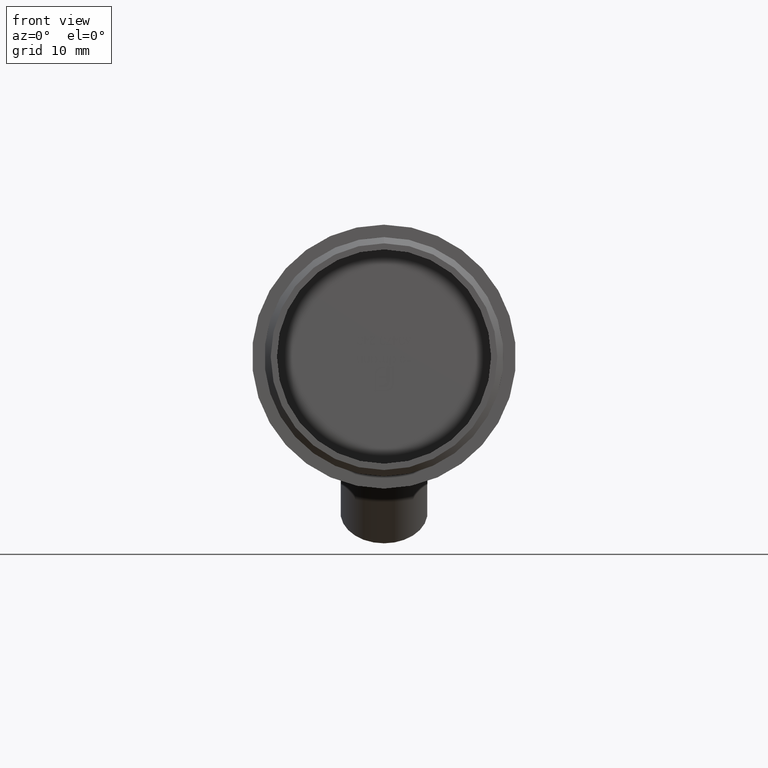
[diagram: clean part render]
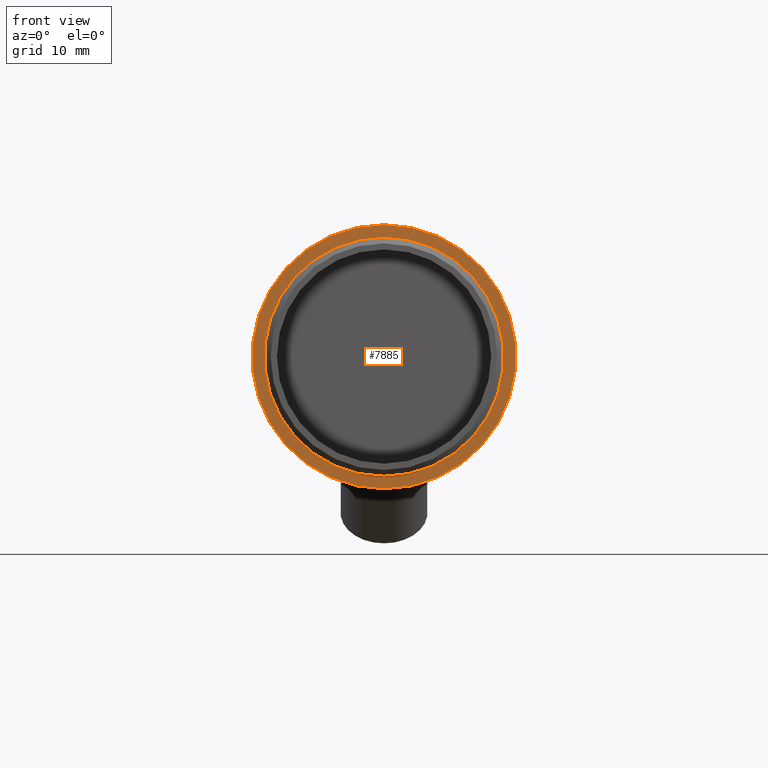
[diagram: same view with one face highlighted and labeled with its STEP entity id]
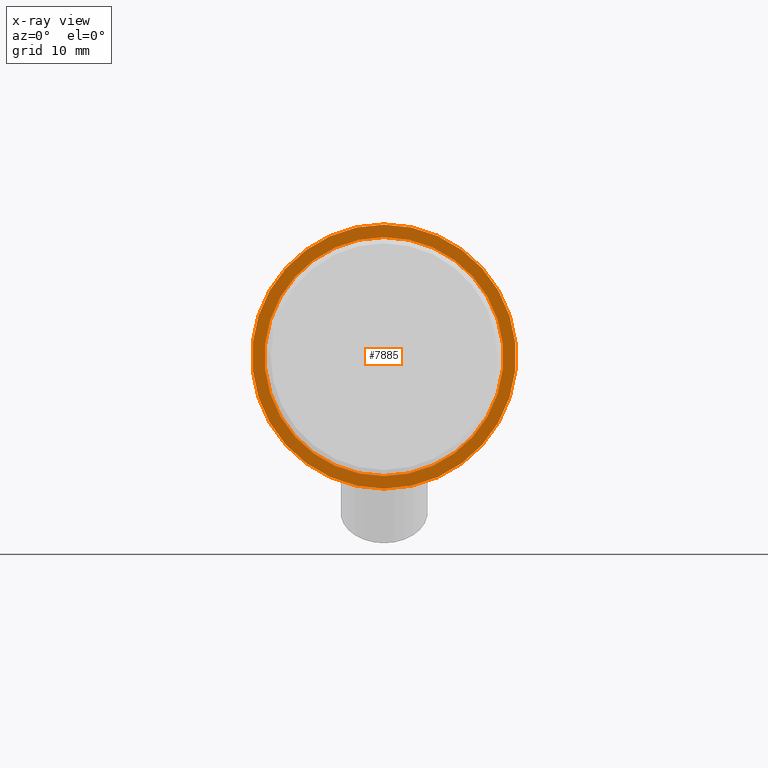
[diagram: x-ray of the same camera — body ghosted, the highlighted face saturated]
A machine part, front view. The second image highlights one B-rep face of the part: STEP entity #7885.
The next image is the same camera in x-ray: the body ghosted, the highlighted face saturated — about 0% of this face is hidden behind the body in this view.
In plain terms, the highlighted planar face has unit normal (-0, 1, 0).
Its self-contained STEP definition (entity closure, byte-faithful):
#178 = DIRECTION ( 'NONE',  ( -0.000000000000000000, 1.000000000000000000, 1.224646799147353207E-16 ) ) ;
#233 = EDGE_CURVE ( 'NONE', #12144, #9454, #13637, .T. ) ;
#591 = DIRECTION ( 'NONE',  ( 0.000000000000000000, -1.227398685832646557E-16, 1.000000000000000000 ) ) ;
#772 = CARTESIAN_POINT ( 'NONE',  ( 0.000000000000000000, -6.999999999999999112, -8.572527594031476148E-16 ) ) ;
#2120 = EDGE_CURVE ( 'NONE', #6525, #3344, #11959, .T. ) ;
#2867 = CARTESIAN_POINT ( 'NONE',  ( 2.351321854362917684E-15, -6.999999999999996447, -19.19999999999999929 ) ) ;
#3344 = VERTEX_POINT ( 'NONE', #10252 ) ;
#4450 = CARTESIAN_POINT ( 'NONE',  ( 0.000000000000000000, -6.999999999999999112, -8.572527594031476148E-16 ) ) ;
#4626 = DIRECTION ( 'NONE',  ( 0.000000000000000000, -1.227398685832646557E-16, 1.000000000000000000 ) ) ;
#4699 = CIRCLE ( 'NONE', #10647, 21.19999999999999929 ) ;
#4711 = EDGE_CURVE ( 'NONE', #3344, #6525, #11915, .T. ) ;
#5109 = DIRECTION ( 'NONE',  ( -0.000000000000000000, 1.000000000000000000, 1.224646799147353207E-16 ) ) ;
#5330 = EDGE_LOOP ( 'NONE', ( #8681, #11758 ) ) ;
#5433 = DIRECTION ( 'NONE',  ( 0.000000000000000000, -1.000000000000000000, -1.224646799147353207E-16 ) ) ;
#6520 = DIRECTION ( 'NONE',  ( 0.000000000000000000, -1.355252715606880543E-16, 1.000000000000000000 ) ) ;
#6525 = VERTEX_POINT ( 'NONE', #2867 ) ;
#6870 = FACE_OUTER_BOUND ( 'NONE', #6892, .T. ) ;
#6892 = EDGE_LOOP ( 'NONE', ( #12827, #13904 ) ) ;
#7885 = ADVANCED_FACE ( 'NONE', ( #14382, #6870 ), #10054, .F. ) ;
#8543 = CARTESIAN_POINT ( 'NONE',  ( 0.000000000000000000, -7.000000000000002665, -8.572527594031475162E-16 ) ) ;
#8681 = ORIENTED_EDGE ( 'NONE', *, *, #4711, .F. ) ;
#8732 = CARTESIAN_POINT ( 'NONE',  ( 2.596251214192388770E-15, -7.000000000000000000, -21.19999999999999929 ) ) ;
#8870 = DIRECTION ( 'NONE',  ( 0.000000000000000000, -1.000000000000000000, -1.224646799147353207E-16 ) ) ;
#9454 = VERTEX_POINT ( 'NONE', #14359 ) ;
#9851 = CARTESIAN_POINT ( 'NONE',  ( 0.000000000000000000, -7.000000000000000888, -8.572527594031474176E-16 ) ) ;
#10054 = PLANE ( 'NONE',  #12628 ) ;
#10252 = CARTESIAN_POINT ( 'NONE',  ( 0.000000000000000000, -7.000000000000001776, 19.19999999999999929 ) ) ;
#10647 = AXIS2_PLACEMENT_3D ( 'NONE', #8543, #5109, #591 ) ;
#10997 = DIRECTION ( 'NONE',  ( -0.000000000000000000, 1.000000000000000000, 1.224646799147353207E-16 ) ) ;
#11076 = AXIS2_PLACEMENT_3D ( 'NONE', #4450, #8870, #13511 ) ;
#11535 = AXIS2_PLACEMENT_3D ( 'NONE', #772, #5433, #6520 ) ;
#11758 = ORIENTED_EDGE ( 'NONE', *, *, #2120, .F. ) ;
#11915 = CIRCLE ( 'NONE', #11076, 19.19999999999999929 ) ;
#11959 = CIRCLE ( 'NONE', #11535, 19.19999999999999929 ) ;
#12144 = VERTEX_POINT ( 'NONE', #8732 ) ;
#12628 = AXIS2_PLACEMENT_3D ( 'NONE', #9851, #10997, #13536 ) ;
#12763 = EDGE_CURVE ( 'NONE', #9454, #12144, #4699, .T. ) ;
#12827 = ORIENTED_EDGE ( 'NONE', *, *, #12763, .F. ) ;
#13511 = DIRECTION ( 'NONE',  ( 0.000000000000000000, -1.355252715606880543E-16, 1.000000000000000000 ) ) ;
#13536 = DIRECTION ( 'NONE',  ( 0.000000000000000000, -1.224646799147353207E-16, 1.000000000000000000 ) ) ;
#13637 = CIRCLE ( 'NONE', #14669, 21.19999999999999929 ) ;
#13876 = CARTESIAN_POINT ( 'NONE',  ( 0.000000000000000000, -7.000000000000002665, -8.572527594031475162E-16 ) ) ;
#13904 = ORIENTED_EDGE ( 'NONE', *, *, #233, .F. ) ;
#14359 = CARTESIAN_POINT ( 'NONE',  ( 0.000000000000000000, -7.000000000000005329, 21.19999999999999929 ) ) ;
#14382 = FACE_BOUND ( 'NONE', #5330, .T. ) ;
#14669 = AXIS2_PLACEMENT_3D ( 'NONE', #13876, #178, #4626 ) ;